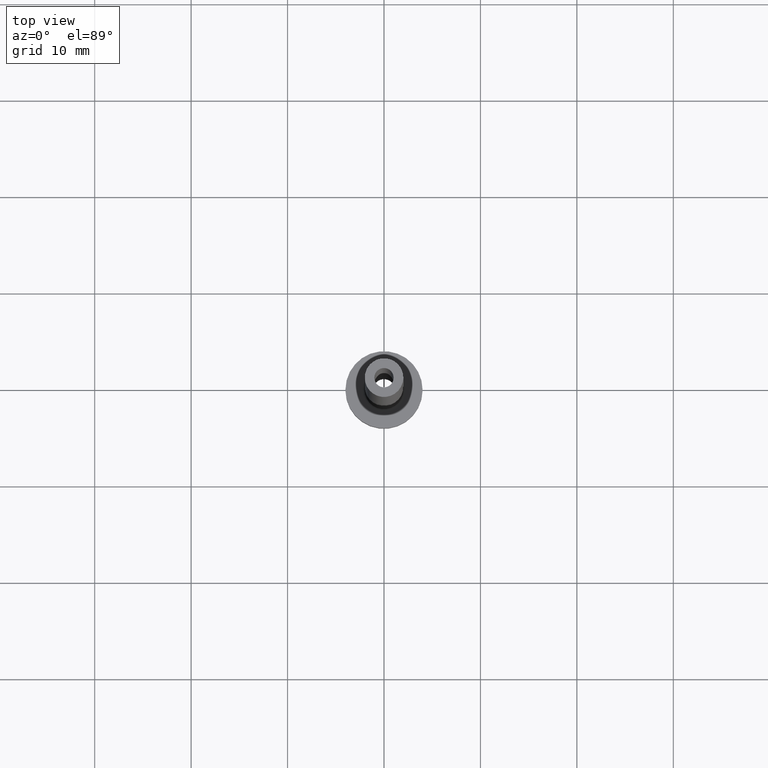
[diagram: clean part render]
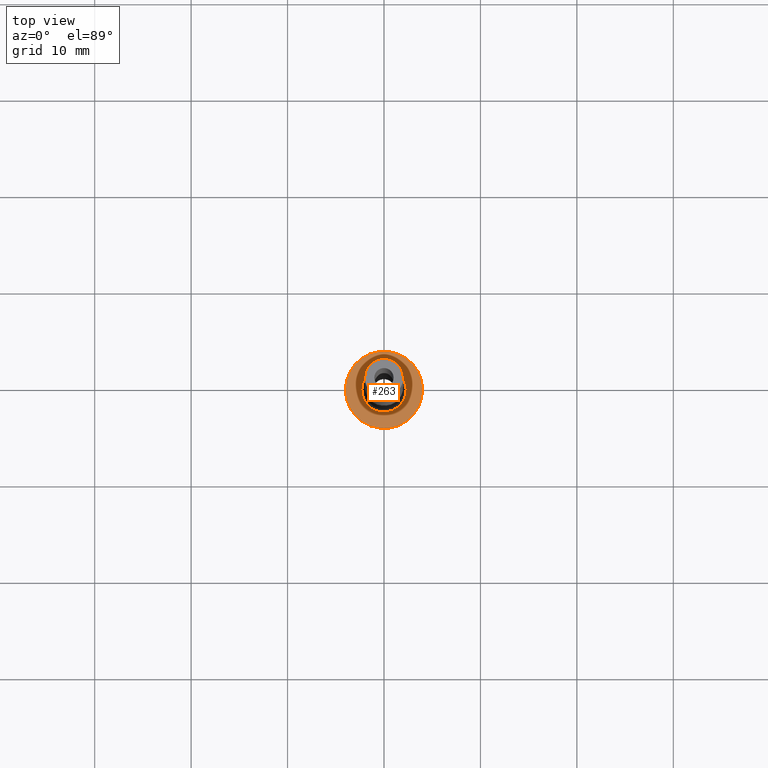
[diagram: same view with one face highlighted and labeled with its STEP entity id]
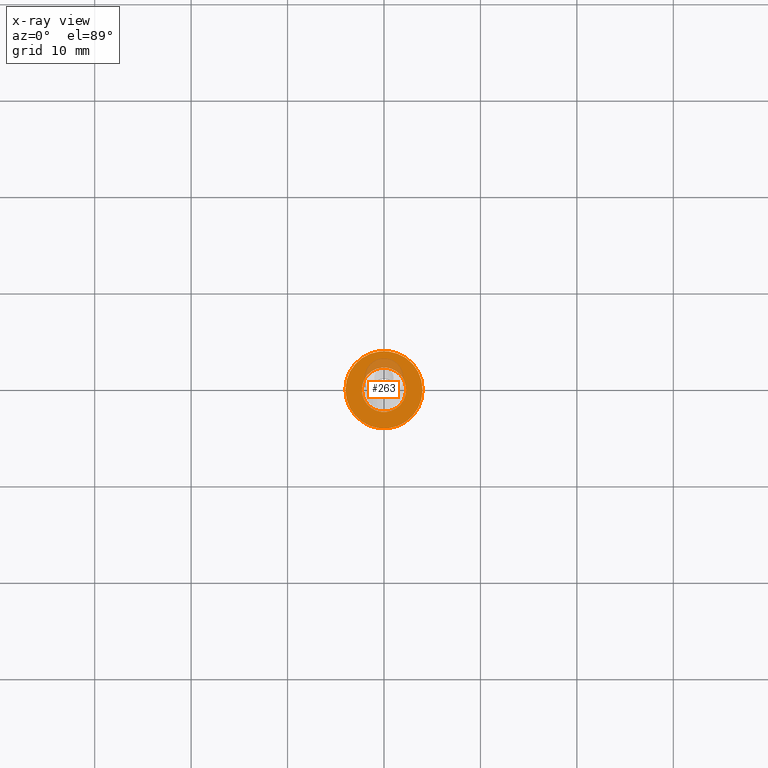
[diagram: x-ray of the same camera — body ghosted, the highlighted face saturated]
A machine part, top view. The second image highlights one B-rep face of the part: STEP entity #263.
The next image is the same camera in x-ray: the body ghosted, the highlighted face saturated — about 10% of this face is hidden behind the body in this view.
In plain terms, the highlighted planar face has unit normal (0, 0, 1).
Its self-contained STEP definition (entity closure, byte-faithful):
#4 = PLANE ( 'NONE',  #385 ) ;
#8 = VERTEX_POINT ( 'NONE', #453 ) ;
#21 = DIRECTION ( 'NONE',  ( 1.000000000000000000, 0.000000000000000000, 0.000000000000000000 ) ) ;
#32 = FACE_BOUND ( 'NONE', #253, .T. ) ;
#51 = EDGE_CURVE ( 'NONE', #326, #8, #265, .T. ) ;
#63 = AXIS2_PLACEMENT_3D ( 'NONE', #425, #218, #314 ) ;
#80 = DIRECTION ( 'NONE',  ( 0.000000000000000000, 0.000000000000000000, 1.000000000000000000 ) ) ;
#89 = VERTEX_POINT ( 'NONE', #240 ) ;
#96 = DIRECTION ( 'NONE',  ( 1.000000000000000000, 0.000000000000000000, 0.000000000000000000 ) ) ;
#97 = DIRECTION ( 'NONE',  ( -0.000000000000000000, -0.000000000000000000, -1.000000000000000000 ) ) ;
#100 = EDGE_CURVE ( 'NONE', #89, #369, #391, .T. ) ;
#105 = CARTESIAN_POINT ( 'NONE',  ( 4.000000000000000000, 4.898587196589412829E-16, 3.000000000000000000 ) ) ;
#141 = AXIS2_PLACEMENT_3D ( 'NONE', #196, #80, #290 ) ;
#147 = DIRECTION ( 'NONE',  ( 0.000000000000000000, 0.000000000000000000, 1.000000000000000000 ) ) ;
#192 = ORIENTED_EDGE ( 'NONE', *, *, #213, .T. ) ;
#196 = CARTESIAN_POINT ( 'NONE',  ( 0.000000000000000000, 0.000000000000000000, 3.000000000000000000 ) ) ;
#213 = EDGE_CURVE ( 'NONE', #369, #89, #251, .T. ) ;
#218 = DIRECTION ( 'NONE',  ( -0.000000000000000000, -0.000000000000000000, -1.000000000000000000 ) ) ;
#221 = AXIS2_PLACEMENT_3D ( 'NONE', #343, #97, #21 ) ;
#240 = CARTESIAN_POINT ( 'NONE',  ( -2.299999999999999822, 2.816687638038912056E-16, 2.999999999999998668 ) ) ;
#248 = FACE_OUTER_BOUND ( 'NONE', #434, .T. ) ;
#249 = DIRECTION ( 'NONE',  ( 1.000000000000000000, 0.000000000000000000, -0.000000000000000000 ) ) ;
#251 = CIRCLE ( 'NONE', #63, 2.299999999999999822 ) ;
#253 = EDGE_LOOP ( 'NONE', ( #192, #357 ) ) ;
#259 = CARTESIAN_POINT ( 'NONE',  ( 2.299999999999999822, 0.000000000000000000, 2.999999999999998668 ) ) ;
#263 = ADVANCED_FACE ( 'NONE', ( #32, #248 ), #4, .T. ) ;
#265 = CIRCLE ( 'NONE', #338, 4.000000000000000000 ) ;
#290 = DIRECTION ( 'NONE',  ( 1.000000000000000000, 0.000000000000000000, 0.000000000000000000 ) ) ;
#291 = ORIENTED_EDGE ( 'NONE', *, *, #395, .T. ) ;
#311 = DIRECTION ( 'NONE',  ( 0.000000000000000000, 0.000000000000000000, 1.000000000000000000 ) ) ;
#314 = DIRECTION ( 'NONE',  ( 1.000000000000000000, 0.000000000000000000, 0.000000000000000000 ) ) ;
#326 = VERTEX_POINT ( 'NONE', #105 ) ;
#338 = AXIS2_PLACEMENT_3D ( 'NONE', #383, #311, #96 ) ;
#343 = CARTESIAN_POINT ( 'NONE',  ( 0.000000000000000000, 0.000000000000000000, 3.000000000000000000 ) ) ;
#357 = ORIENTED_EDGE ( 'NONE', *, *, #100, .T. ) ;
#369 = VERTEX_POINT ( 'NONE', #259 ) ;
#383 = CARTESIAN_POINT ( 'NONE',  ( 0.000000000000000000, 0.000000000000000000, 3.000000000000000000 ) ) ;
#385 = AXIS2_PLACEMENT_3D ( 'NONE', #421, #147, #249 ) ;
#391 = CIRCLE ( 'NONE', #221, 2.299999999999999822 ) ;
#395 = EDGE_CURVE ( 'NONE', #8, #326, #413, .T. ) ;
#403 = ORIENTED_EDGE ( 'NONE', *, *, #51, .T. ) ;
#413 = CIRCLE ( 'NONE', #141, 4.000000000000000000 ) ;
#421 = CARTESIAN_POINT ( 'NONE',  ( 0.000000000000000000, 0.000000000000000000, 3.000000000000000000 ) ) ;
#425 = CARTESIAN_POINT ( 'NONE',  ( 0.000000000000000000, 0.000000000000000000, 3.000000000000000000 ) ) ;
#434 = EDGE_LOOP ( 'NONE', ( #291, #403 ) ) ;
#453 = CARTESIAN_POINT ( 'NONE',  ( -4.000000000000000000, 0.000000000000000000, 3.000000000000000000 ) ) ;